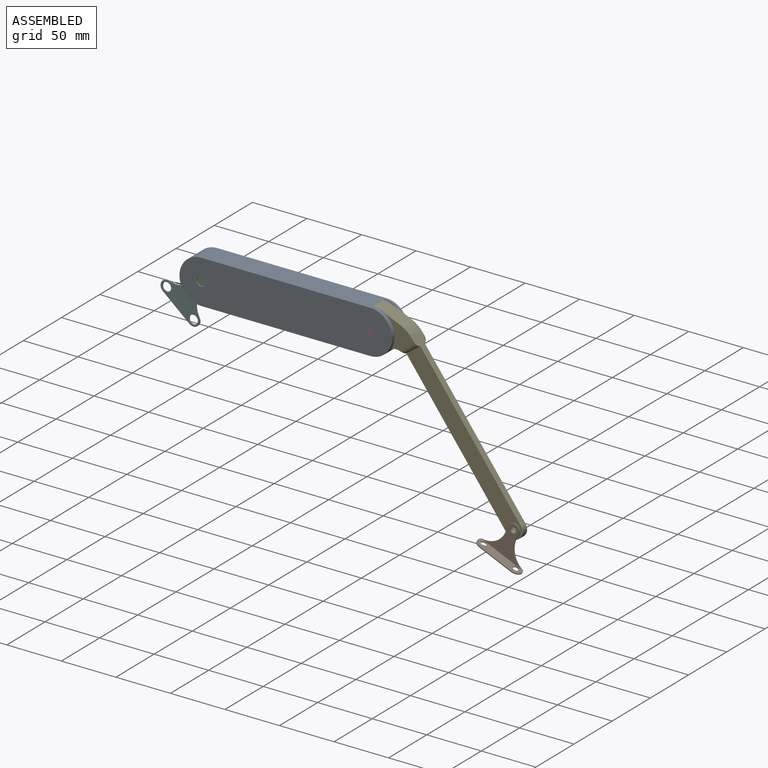
[diagram: assembled view]
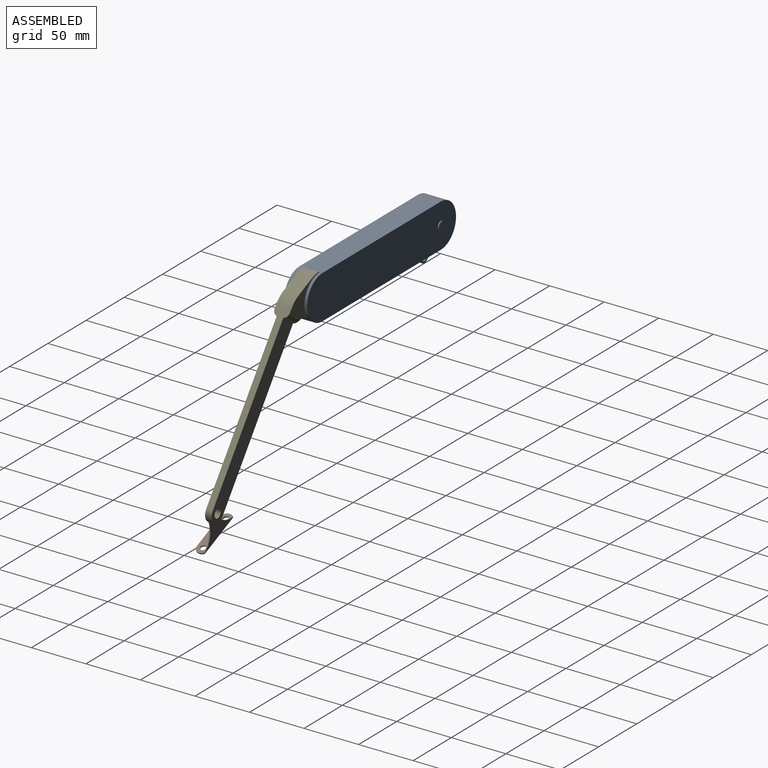
[diagram: assembled view, second angle]
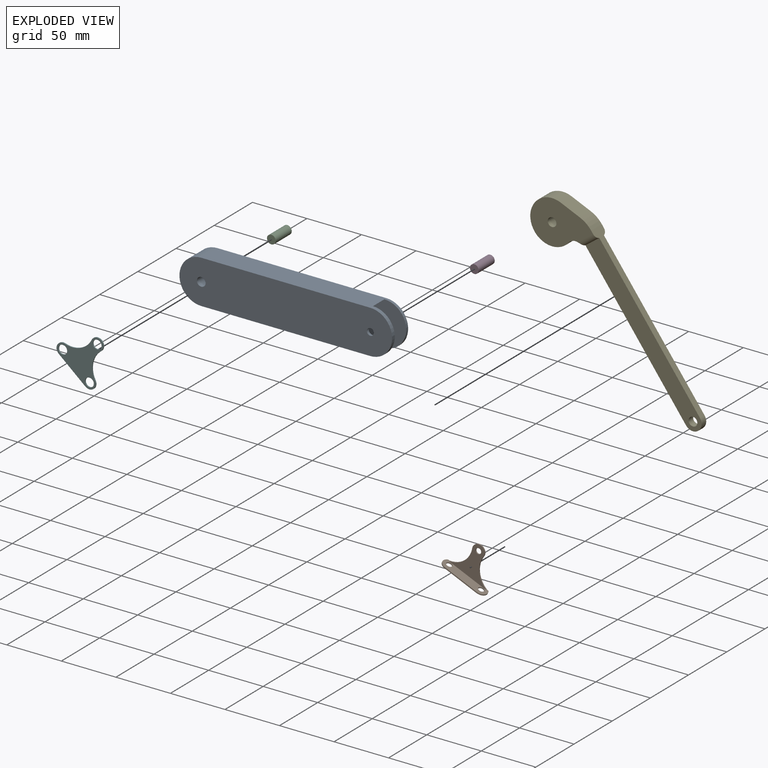
[diagram: exploded view]
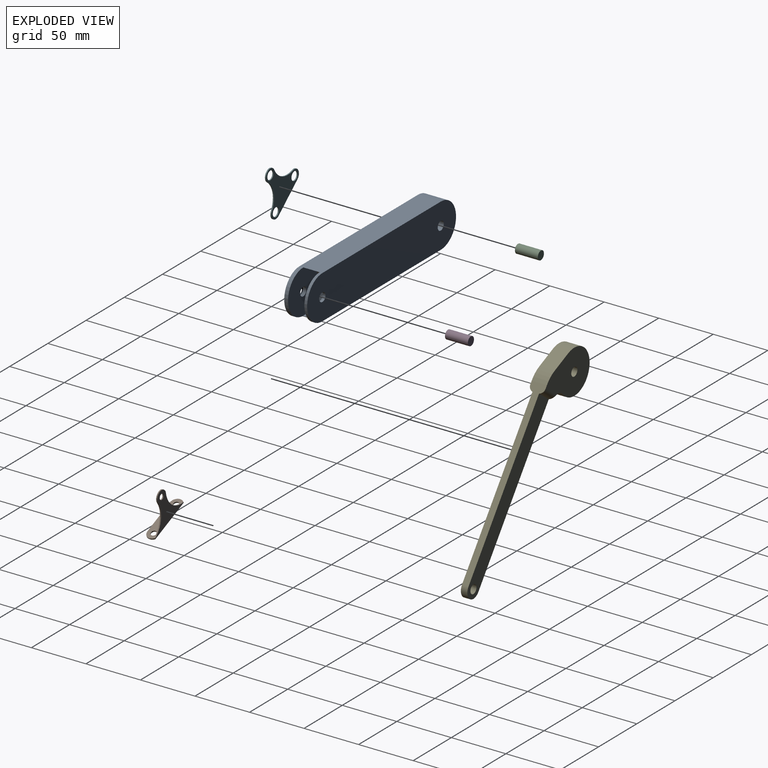
[diagram: exploded view, second angle]
ASSEMBLY  parts=6 mates=5
PART A: 14 faces, bbox 195x21x40 mm
  f0: cylinder r=20mm len=40mm, axis (0,1,0), area 157.1mm2, adj f1,f3,f6,f9
  f1: plane 155x21mm, normal (0,0,1), area 3255mm2, adj f0,f2,f4,f5,f6,f8
  f2: cylinder r=20mm len=40mm, axis (0,1,0), area 1319.5mm2, adj f1,f3,f5,f6
  f3: plane 155x21mm, normal (0,0,-1), area 3255mm2, adj f0,f2,f4,f5,f6,f8
  f4: cylinder r=20mm len=40mm, axis (0,1,0), area 219.9mm2, adj f1,f3,f5,f7
  f5: plane 195x40mm, normal (0,-1,0), area 7374.8mm2, adj f1,f2,f3,f4,f11,f13
  f6: plane 195x40mm, normal (0,1,0), area 7356.1mm2, adj f0,f1,f2,f3,f10,f13
  f7: plane 40x40mm, normal (0,1,0), area 1206.4mm2, adj f4,f8,f12
  f8: cylinder r=20mm len=40mm, axis (0,-1,0), area 942.5mm2, adj f1,f3,f7,f9
  f9: plane 40x40mm, normal (0,-1,0), area 1206.4mm2, adj f0,f8,f10
  f10: cylinder r=4mm len=8mm, axis (0,-1,0), area 62.8mm2, adj f6,f9
  f11: cone r=0mm half-angle=59deg, axis (0,1,0), area 21.9mm2, adj f5,f12
  f12: cylinder r=4mm len=8mm, axis (0,1,0), area 75.4mm2, adj f7,f11
  f13: cylinder r=4mm len=21mm, axis (0,1,0), area 527.8mm2, adj f5,f6
PART B: 15 faces, bbox 43.5x9.8x31.8 mm
  f0: plane 43.5x9.75mm, normal (0,0,-1), area 328.9mm2, adj f1,f2,f3,f5,f6,f7,f8,f9
  f1: plane 32x1mm, normal (0,-1,0), area 32mm2, adj f0,f4,f5,f6
  f2: cylinder r=2.5mm len=5mm, axis (0,0,1), area 15.7mm2, adj f0,f4
  f3: cylinder r=2.5mm len=5mm, axis (0,0,1), area 15.7mm2, adj f0,f4
  f4: plane 43.5x9.75mm, normal (0,0,1), area 366.6mm2, adj f1,f2,f3,f5,f6,f7
  f5: cylinder r=5.75mm len=9.75mm, axis (0,0,1), area 13.5mm2, adj f0,f1,f4,f7
  f6: cylinder r=5.75mm len=9.75mm, axis (0,0,1), area 13.5mm2, adj f0,f1,f4,f7
  f7: plane 40.26x31.75mm, normal (0,1,0), area 471.9mm2, adj f0,f4,f5,f6,f8,f9,f11,f12
  f8: cylinder r=5.75mm len=1mm, axis (0,1,0), area 0.9mm2, adj f0,f7,f10,f11
  f9: cylinder r=5.75mm len=1mm, axis (0,1,0), area 0.9mm2, adj f0,f7,f10,f13
  f10: plane 37.68x30.75mm, normal (0,-1,0), area 431.6mm2, adj f0,f8,f9,f11,f12,f13,f14
  f11: cylinder r=20mm len=23.3mm, axis (0,1,0), area 28.8mm2, adj f7,f8,f10,f12
  f12: cylinder r=5.75mm len=11.5mm, axis (0,1,0), area 20.7mm2, adj f7,f10,f11,f13
  f13: cylinder r=20mm len=23.3mm, axis (0,1,0), area 28.8mm2, adj f7,f9,f10,f12
  f14: cylinder r=2.5mm len=5mm, axis (0,1,0), area 15.7mm2, adj f7,f10
PART C: 3 faces, bbox 8x21x8 mm
  f0: cylinder r=4mm len=21mm, axis (0,1,0), area 527.8mm2, adj f1,f2
  f1: plane 8x8mm, normal (0,-1,0), area 50.3mm2, adj f0
  f2: plane 8x8mm, normal (0,1,0), area 50.3mm2, adj f0
PART D: same geometry as C
PART E: 15 faces, bbox 196.9x14x99.6 mm
  f0: plane 134.23x77.5mm, normal (-0.5,0,-0.87), area 930mm2, adj f1,f5,f10,f11
  f1: cylinder r=7.96mm len=14.85mm, axis (0,1,0), area 150mm2, adj f0,f2,f10,f11
  f2: plane 141.03x81.43mm, normal (0.5,0,0.87), area 1030.1mm2, adj f1,f6,f7,f8,f10,f11,f12,f13
  f3: plane 19.37x14mm, normal (0,0,1), area 271.1mm2, adj f4,f6,f7,f8
  f4: cylinder r=20mm len=40mm, axis (0,1,0), area 1239.1mm2, adj f3,f5,f7,f8
  f5: cylinder r=7.9mm len=14mm, axis (0,1,0), area 189.9mm2, adj f0,f4,f7,f8,f12,f13
  f6: cylinder r=25mm len=14mm, axis (0,1,0), area 183.3mm2, adj f2,f3,f7,f8
  f7: plane 54.42x40mm, normal (0,-1,0), area 1498.4mm2, adj f2,f3,f4,f5,f6,f9,f13
  f8: plane 54.42x40mm, normal (0,1,0), area 1498.4mm2, adj f2,f3,f4,f5,f6,f9,f12
  f9: cylinder r=4mm len=14mm, axis (0,1,0), area 351.9mm2, adj f7,f8
  f10: plane 146.17x92.35mm, normal (0,1,0), area 2516mm2, adj f0,f1,f2,f12,f14
  f11: plane 146.17x92.35mm, normal (0,-1,0), area 2516mm2, adj f0,f1,f2,f13,f14
  f12: cylinder r=5mm len=17.71mm, axis (-0.5,0,-0.87), area 111.8mm2, adj f2,f5,f8,f10
  f13: cylinder r=5mm len=17.71mm, axis (-0.5,0,-0.87), area 111.8mm2, adj f2,f5,f7,f11
  f14: cylinder r=4mm len=8mm, axis (0,1,0), area 150.8mm2, adj f10,f11
PART F: 11 faces, bbox 43.5x1x41.5 mm
  f0: plane 32x1mm, normal (0,0,1), area 32mm2, adj f1,f5,f6,f7
  f1: cylinder r=5.75mm len=11.13mm, axis (0,-1,0), area 16mm2, adj f0,f2,f6,f7
  f2: cylinder r=20mm len=23.3mm, axis (0,-1,0), area 28.8mm2, adj f1,f3,f6,f7
  f3: cylinder r=5.75mm len=11.5mm, axis (0,-1,0), area 20.7mm2, adj f2,f4,f6,f7
  f4: cylinder r=20mm len=23.3mm, axis (0,-1,0), area 28.8mm2, adj f3,f5,f6,f7
  f5: cylinder r=5.75mm len=11.13mm, axis (0,-1,0), area 16mm2, adj f0,f4,f6,f7
  f6: plane 43.5x41.5mm, normal (0,1,0), area 745.5mm2, adj f0,f1,f2,f3,f4,f5,f8,f9
  f7: plane 43.5x41.5mm, normal (0,-1,0), area 745.5mm2, adj f0,f1,f2,f3,f4,f5,f8,f9
  f8: cylinder r=4mm len=8mm, axis (0,-1,0), area 25.1mm2, adj f6,f7
  f9: cylinder r=4mm len=8mm, axis (0,-1,0), area 25.1mm2, adj f6,f7
  f10: cylinder r=4mm len=8mm, axis (0,-1,0), area 25.1mm2, adj f6,f7
PLACE A t=(-62.28,-17.59,11.8)mm fixed
PLACE B rot(axis=(0,-1,0),156.5deg) t=(132.84,-31.09,-141.39)mm
PLACE C rot(axis=(0,1,0),3.6deg) t=(-139.78,-16.59,11.8)mm
PLACE D t=(15.22,-17.59,11.8)mm
PLACE E rot(axis=(0,1,0),23.5deg) t=(15.22,-21.09,11.8)mm
PLACE F rot(axis=(0,-1,0),139.9deg) t=(-153.97,-38.59,-5.02)mm
MATE revolute C.f0 <-> F.f8  axis (0,-1,0) through (-139.78,-37.59,11.8)mm
MATE revolute A.f13 <-> F.f8  axis (0,-1,0) through (-139.78,-38.59,11.8)mm
MATE revolute E.f9 <-> D.f0  axis (0,1,0) through (15.22,-28.09,11.8)mm
MATE revolute D.f0 <-> A.f11  axis (0,-1,0) through (15.22,-38.59,11.8)mm
MATE revolute B.f12 <-> E.f1  axis (0,1,0) through (141.6,-31.09,-121.23)mm
